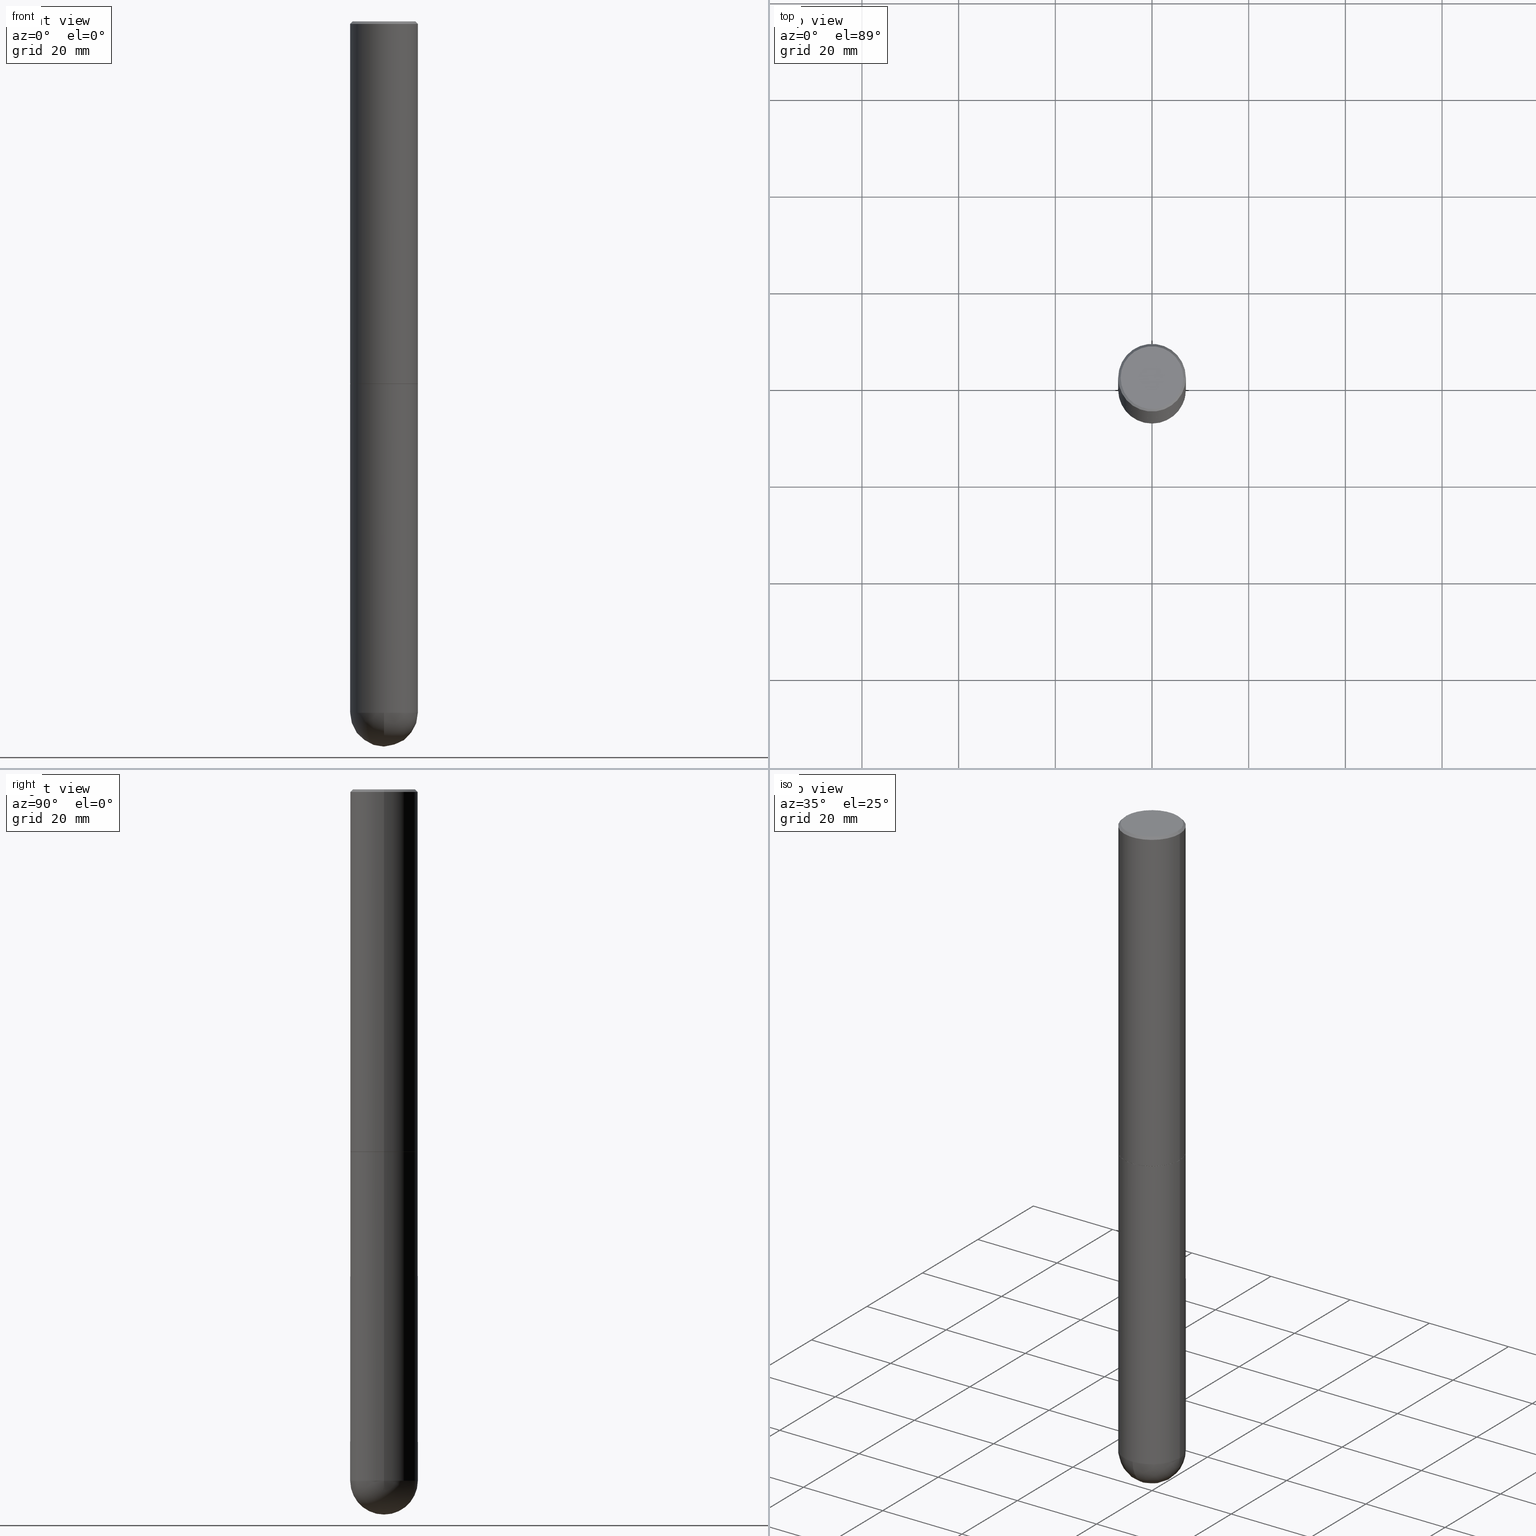
[diagram: canonical four-view strip — front | top / right | iso, engineering-drawing reading convention]
A machine part, canonical four-view strip (front | top / right | iso — engineering-drawing reading convention). The complete STEP part file that produces these views, byte-faithful:
ISO-10303-21;
HEADER;
FILE_DESCRIPTION (( 'STEP AP203' ),
    '1' );
FILE_NAME ('49617.STEP',
    '2024-04-10T12:30:39',
    ( '' ),
    ( '' ),
    'SwSTEP 2.0',
    'SolidWorks 2023',
    '' );
FILE_SCHEMA (( 'CONFIG_CONTROL_DESIGN' ));
ENDSEC;

DATA;
#1 = CARTESIAN_POINT ( 'NONE',  ( 1.343662505402781410E-28, -2.013087315769307636E-14, -5.629900000000000126 ) ) ;
#2 = FACE_OUTER_BOUND ( 'NONE', #232, .T. ) ;
#3 = ORIENTED_EDGE ( 'NONE', *, *, #283, .F. ) ;
#4 = EDGE_CURVE ( 'NONE', #39, #401, #132, .T. ) ;
#5 = VERTEX_POINT ( 'NONE', #399 ) ;
#6 = DIRECTION ( 'NONE',  ( -2.445468806185136597E-29, 3.491481338843145583E-15, 1.000000000000000000 ) ) ;
#7 = CARTESIAN_POINT ( 'NONE',  ( -3.862250233040313002E-45, 5.514269730407654285E-31, 1.579349621337152204E-16 ) ) ;
#8 = AXIS2_PLACEMENT_3D ( 'NONE', #258, #327, #157 ) ;
#9 = EDGE_LOOP ( 'NONE', ( #116, #371, #123, #220 ) ) ;
#10 = CC_DESIGN_APPROVAL ( #214, ( #393 ) ) ;
#11 = CIRCLE ( 'NONE', #361, 0.2756000000000000116 ) ;
#12 = ORIENTED_EDGE ( 'NONE', *, *, #4, .T. ) ;
#13 = VERTEX_POINT ( 'NONE', #314 ) ;
#14 =( NAMED_UNIT ( * ) SI_UNIT ( $, .STERADIAN. ) SOLID_ANGLE_UNIT ( ) );
#15 = CC_DESIGN_PERSON_AND_ORGANIZATION_ASSIGNMENT ( #239, #299, ( #82 ) ) ;
#16 = PERSON_AND_ORGANIZATION_ROLE ( 'classification_officer' ) ;
#17 = CIRCLE ( 'NONE', #254, 0.2756000000000000671 ) ;
#18 = APPROVAL_PERSON_ORGANIZATION ( #38, #253, #36 ) ;
#19 = ORIENTED_EDGE ( 'NONE', *, *, #243, .F. ) ;
#20 = LINE ( 'NONE', #196, #133 ) ;
#21 = ORIENTED_EDGE ( 'NONE', *, *, #345, .F. ) ;
#22 = CARTESIAN_POINT ( 'NONE',  ( 1.376774483194169922E-28, -1.965669078955302449E-14, -5.629900000000000126 ) ) ;
#23 = APPLICATION_PROTOCOL_DEFINITION ( 'international standard', 'config_control_design', 1994, #351 ) ;
#24 = DIRECTION ( 'NONE',  ( 2.445468806185136597E-29, -3.491481338843145583E-15, -1.000000000000000000 ) ) ;
#25 = DATE_TIME_ROLE ( 'classification_date' ) ;
#26 = PERSON_AND_ORGANIZATION_ROLE ( 'design_owner' ) ;
#27 = CARTESIAN_POINT ( 'NONE',  ( 0.2756000000000004557, -1.223030998183365327E-14, -2.951700000000000212 ) ) ;
#28 = CIRCLE ( 'NONE', #189, 0.2756000000000000116 ) ;
#29 = DIRECTION ( 'NONE',  ( -2.445468806185136597E-29, 3.491481338843145583E-15, 1.000000000000000000 ) ) ;
#30 = EDGE_CURVE ( 'NONE', #341, #75, #297, .T. ) ;
#31 = CARTESIAN_POINT ( 'NONE',  ( 1.924504513970407529E-15, 0.2755999999999896866, -2.952700000000000990 ) ) ;
#32 = EDGE_CURVE ( 'NONE', #303, #43, #255, .T. ) ;
#33 = CARTESIAN_POINT ( 'NONE',  ( 7.218290275216666916E-29, -1.030580546786331359E-14, -2.951700000000000212 ) ) ;
#34 = ADVANCED_FACE ( 'NONE', ( #94 ), #279, .F. ) ;
#35 = DIRECTION ( 'NONE',  ( -2.445468806185136597E-29, 3.491481338843145583E-15, 1.000000000000000000 ) ) ;
#36 = APPROVAL_ROLE ( '' ) ;
#37 = PLANE ( 'NONE',  #125 ) ;
#38 = PERSON_AND_ORGANIZATION ( #266, #277 ) ;
#39 = VERTEX_POINT ( 'NONE', #310 ) ;
#40 = CARTESIAN_POINT ( 'NONE',  ( 1.376774483194169922E-28, -1.965669078955302449E-14, -5.629900000000000126 ) ) ;
#41 = DIRECTION ( 'NONE',  ( 1.000000000000000000, -6.982962677686264344E-15, 0.000000000000000000 ) ) ;
#42 = ORIENTED_EDGE ( 'NONE', *, *, #359, .T. ) ;
#43 = VERTEX_POINT ( 'NONE', #27 ) ;
#44 = COORDINATED_UNIVERSAL_TIME_OFFSET ( 5, 0, .BEHIND. ) ;
#45 = DIRECTION ( 'NONE',  ( -2.445468806185136877E-29, 3.491481338843145188E-15, 1.000000000000000000 ) ) ;
#46 = CARTESIAN_POINT ( 'NONE',  ( -3.862250233040313002E-45, 5.514269730407654285E-31, 1.579349621337152204E-16 ) ) ;
#47 = ORIENTED_EDGE ( 'NONE', *, *, #96, .T. ) ;
#48 = DIRECTION ( 'NONE',  ( -0.7071067811865837660, 7.493145998870485111E-15, 0.7071067811865112684 ) ) ;
#49 = PERSON_AND_ORGANIZATION ( #266, #277 ) ;
#50 = DIRECTION ( 'NONE',  ( 1.000000000000000000, -6.982962677686265922E-15, 4.876943595080614977E-29 ) ) ;
#51 = CC_DESIGN_PERSON_AND_ORGANIZATION_ASSIGNMENT ( #335, #26, ( #275 ) ) ;
#52 = FACE_OUTER_BOUND ( 'NONE', #9, .T. ) ;
#53 = CALENDAR_DATE ( 2024, 10, 4 ) ;
#54 = DIRECTION ( 'NONE',  ( 1.000000000000000000, -6.982962677686265922E-15, 0.000000000000000000 ) ) ;
#55 = CIRCLE ( 'NONE', #367, 0.2756000000000000671 ) ;
#56 = COORDINATED_UNIVERSAL_TIME_OFFSET ( 5, 0, .BEHIND. ) ;
#57 = VERTEX_POINT ( 'NONE', #142 ) ;
#58 = CARTESIAN_POINT ( 'NONE',  ( 7.220735744022852519E-29, -1.030929694920215502E-14, -2.952700000000000102 ) ) ;
#59 = DIRECTION ( 'NONE',  ( 1.000000000000000000, -6.982962677686262766E-15, 0.000000000000000000 ) ) ;
#60 = DIRECTION ( 'NONE',  ( 1.000000000000000000, -6.982962677686267499E-15, 4.876176775795935793E-29 ) ) ;
#61 = CIRCLE ( 'NONE', #170, 0.2756000000000004557 ) ;
#62 = CC_DESIGN_APPROVAL ( #253, ( #355 ) ) ;
#63 = DIRECTION ( 'NONE',  ( -1.000000000000000000, 6.982962677686267499E-15, 0.000000000000000000 ) ) ;
#64 = EDGE_CURVE ( 'NONE', #131, #388, #11, .T. ) ;
#65 = LINE ( 'NONE', #113, #390 ) ;
#66 = EDGE_CURVE ( 'NONE', #13, #401, #28, .T. ) ;
#67 = ADVANCED_BREP_SHAPE_REPRESENTATION ( '49617', ( #204, #349, #296 ), #244 ) ;
#68 = EDGE_CURVE ( 'NONE', #106, #5, #161, .T. ) ;
#69 = ORIENTED_EDGE ( 'NONE', *, *, #381, .T. ) ;
#70 = AXIS2_PLACEMENT_3D ( 'NONE', #7, #215, #392 ) ;
#71 = CC_DESIGN_SECURITY_CLASSIFICATION ( #355, ( #82 ) ) ;
#72 = CYLINDRICAL_SURFACE ( 'NONE', #120, 0.2756000000000000671 ) ;
#73 = DIRECTION ( 'NONE',  ( -1.000000000000000000, 7.105427357601001070E-15, -4.926315508542082329E-29 ) ) ;
#74 = AXIS2_PLACEMENT_3D ( 'NONE', #330, #163, #300 ) ;
#75 = VERTEX_POINT ( 'NONE', #197 ) ;
#76 = SPHERICAL_SURFACE ( 'NONE', #74, 0.2756000000000000671 ) ;
#77 = DIRECTION ( 'NONE',  ( 0.7071067811865837660, -2.468850131082636503E-15, 0.7071067811865112684 ) ) ;
#78 = ORIENTED_EDGE ( 'NONE', *, *, #315, .T. ) ;
#79 = ADVANCED_FACE ( 'NONE', ( #237 ), #76, .T. ) ;
#80 = EDGE_LOOP ( 'NONE', ( #184, #288, #3, #100 ) ) ;
#81 = VECTOR ( 'NONE', #358, 39.37007874015748143 ) ;
#82 = PRODUCT_DEFINITION_FORMATION_WITH_SPECIFIED_SOURCE ( 'ANY', '', #275, .NOT_KNOWN. ) ;
#83 = DIRECTION ( 'NONE',  ( -2.445468806185136597E-29, 3.491481338843145583E-15, 1.000000000000000000 ) ) ;
#84 = APPROVAL_DATE_TIME ( #252, #410 ) ;
#85 = ORIENTED_EDGE ( 'NONE', *, *, #345, .T. ) ;
#86 = VECTOR ( 'NONE', #380, 39.37007874015748143 ) ;
#87 = DIRECTION ( 'NONE',  ( -2.445468806185136597E-29, 3.491481338843145583E-15, 1.000000000000000000 ) ) ;
#88 = ORIENTED_EDGE ( 'NONE', *, *, #64, .T. ) ;
#89 = CYLINDRICAL_SURFACE ( 'NONE', #146, 0.2756000000000002337 ) ;
#90 = EDGE_CURVE ( 'NONE', #57, #294, #201, .T. ) ;
#91 = DIRECTION ( 'NONE',  ( 1.000000000000000000, -6.982962677686262766E-15, 0.000000000000000000 ) ) ;
#92 = AXIS2_PLACEMENT_3D ( 'NONE', #353, #124, #316 ) ;
#93 = CARTESIAN_POINT ( 'NONE',  ( 7.220735744022852519E-29, -1.030929694920215502E-14, -2.952700000000000102 ) ) ;
#94 = FACE_OUTER_BOUND ( 'NONE', #98, .T. ) ;
#95 = VECTOR ( 'NONE', #45, 39.37007874015748143 ) ;
#96 = EDGE_CURVE ( 'NONE', #223, #131, #65, .T. ) ;
#97 = LINE ( 'NONE', #222, #81 ) ;
#98 = EDGE_LOOP ( 'NONE', ( #108, #262 ) ) ;
#99 = ADVANCED_FACE ( 'NONE', ( #404 ), #309, .T. ) ;
#100 = ORIENTED_EDGE ( 'NONE', *, *, #281, .F. ) ;
#101 = DIRECTION ( 'NONE',  ( 0.000000000000000000, 0.000000000000000000, 1.000000000000000000 ) ) ;
#102 = ADVANCED_FACE ( 'NONE', ( #119 ), #139, .T. ) ;
#103 = DIRECTION ( 'NONE',  ( -2.445468806185136597E-29, 3.491481338843145583E-15, 1.000000000000000000 ) ) ;
#104 = ADVANCED_FACE ( 'NONE', ( #278 ), #271, .T. ) ;
#105 = ORIENTED_EDGE ( 'NONE', *, *, #238, .T. ) ;
#106 = VERTEX_POINT ( 'NONE', #178 ) ;
#107 = PRODUCT_RELATED_PRODUCT_CATEGORY ( 'detail', '', ( #275 ) ) ;
#108 = ORIENTED_EDGE ( 'NONE', *, *, #68, .F. ) ;
#109 = CIRCLE ( 'NONE', #325, 0.2756000000000000671 ) ;
#110 = DIRECTION ( 'NONE',  ( -2.445468806185136597E-29, 3.491481338843145583E-15, 1.000000000000000000 ) ) ;
#111 = VERTEX_POINT ( 'NONE', #312 ) ;
#112 = PERSON_AND_ORGANIZATION_ROLE ( 'creator' ) ;
#113 = CARTESIAN_POINT ( 'NONE',  ( 0.2756000000000000116, -1.960582874962697406E-15, -0.02000000000000006287 ) ) ;
#114 = AXIS2_PLACEMENT_3D ( 'NONE', #169, #83, #306 ) ;
#115 = LOCAL_TIME ( 8, 30, 39.00000000000000000, #387 ) ;
#116 = ORIENTED_EDGE ( 'NONE', *, *, #96, .F. ) ;
#117 = CARTESIAN_POINT ( 'NONE',  ( 4.890937612370288923E-31, -6.982962677686312563E-17, -0.02000000000000006287 ) ) ;
#118 = CARTESIAN_POINT ( 'NONE',  ( 0.2756000000000002337, -1.924504513970336926E-15, 1.343874319409361109E-29 ) ) ;
#119 = FACE_OUTER_BOUND ( 'NONE', #80, .T. ) ;
#120 = AXIS2_PLACEMENT_3D ( 'NONE', #185, #6, #357 ) ;
#121 = DIMENSIONAL_EXPONENTS ( 1.000000000000000000, 0.000000000000000000, 0.000000000000000000, 0.000000000000000000, 0.000000000000000000, 0.000000000000000000, 0.000000000000000000 ) ;
#122 = APPROVAL_DATE_TIME ( #352, #253 ) ;
#123 = ORIENTED_EDGE ( 'NONE', *, *, #234, .T. ) ;
#124 = DIRECTION ( 'NONE',  ( -2.445468806185136597E-29, 3.491481338843145583E-15, 1.000000000000000000 ) ) ;
#125 = AXIS2_PLACEMENT_3D ( 'NONE', #389, #284, #356 ) ;
#126 = DIRECTION ( 'NONE',  ( -7.105427357601001859E-15, -1.000000000000000000, 0.000000000000000000 ) ) ;
#127 = ORIENTED_EDGE ( 'NONE', *, *, #315, .F. ) ;
#128 = EDGE_LOOP ( 'NONE', ( #159, #328, #228, #386 ) ) ;
#129 = CC_DESIGN_DATE_AND_TIME_ASSIGNMENT ( #168, #25, ( #355 ) ) ;
#130 = DIRECTION ( 'NONE',  ( -2.445468806185136597E-29, 3.491481338843145583E-15, 1.000000000000000000 ) ) ;
#131 = VERTEX_POINT ( 'NONE', #409 ) ;
#132 = LINE ( 'NONE', #264, #95 ) ;
#133 = VECTOR ( 'NONE', #48, 39.37007874015748143 ) ;
#134 = CARTESIAN_POINT ( 'NONE',  ( 0.2746000000000000107, -1.222681850049480396E-14, -2.952700000000000546 ) ) ;
#135 = CIRCLE ( 'NONE', #70, 0.2555999999999998828 ) ;
#136 = EDGE_LOOP ( 'NONE', ( #149, #293, #85, #155 ) ) ;
#137 = PERSON_AND_ORGANIZATION ( #266, #277 ) ;
#138 = APPROVAL_ROLE ( '' ) ;
#139 = CONICAL_SURFACE ( 'NONE', #347, 0.2746000000000000107, 0.7853981633974995713 ) ;
#140 = ADVANCED_FACE ( 'NONE', ( #350 ), #221, .T. ) ;
#141 = FACE_OUTER_BOUND ( 'NONE', #267, .T. ) ;
#142 = CARTESIAN_POINT ( 'NONE',  ( -1.958255779754700116E-15, -0.2756000000000199956, -5.629899999999999238 ) ) ;
#143 = CARTESIAN_POINT ( 'NONE',  ( 0.000000000000000000, 0.000000000000000000, 0.000000000000000000 ) ) ;
#144 = DIRECTION ( 'NONE',  ( 1.000000000000000000, -6.982962677686262766E-15, 0.000000000000000000 ) ) ;
#145 = FACE_OUTER_BOUND ( 'NONE', #259, .T. ) ;
#146 = AXIS2_PLACEMENT_3D ( 'NONE', #143, #406, #203 ) ;
#147 = DIRECTION ( 'NONE',  ( -0.7071067811865464625, 2.468850131082245622E-15, -0.7071067811865485719 ) ) ;
#148 =( LENGTH_UNIT ( ) NAMED_UNIT ( * ) SI_UNIT ( $, .METRE. ) );
#149 = ORIENTED_EDGE ( 'NONE', *, *, #381, .F. ) ;
#150 = APPLICATION_CONTEXT ( 'configuration controlled 3d designs of mechanical parts and assemblies' ) ;
#151 = ORIENTED_EDGE ( 'NONE', *, *, #281, .T. ) ;
#152 = CARTESIAN_POINT ( 'NONE',  ( 0.2555999999999998828, -1.857063081596549636E-15, 1.579349621337279654E-16 ) ) ;
#153 = AXIS2_PLACEMENT_3D ( 'NONE', #33, #384, #318 ) ;
#154 = CARTESIAN_POINT ( 'NONE',  ( 4.890937612370288923E-31, -6.982962677686312563E-17, -0.02000000000000006287 ) ) ;
#155 = ORIENTED_EDGE ( 'NONE', *, *, #265, .F. ) ;
#156 = CC_DESIGN_PERSON_AND_ORGANIZATION_ASSIGNMENT ( #49, #112, ( #393 ) ) ;
#157 = DIRECTION ( 'NONE',  ( 6.982962677686265922E-15, 1.000000000000000000, -3.964946289788479319E-15 ) ) ;
#158 = EDGE_LOOP ( 'NONE', ( #105, #171 ) ) ;
#159 = ORIENTED_EDGE ( 'NONE', *, *, #216, .F. ) ;
#160 = PERSON_AND_ORGANIZATION ( #266, #277 ) ;
#161 = CIRCLE ( 'NONE', #114, 0.2746000000000000107 ) ;
#162 = EDGE_CURVE ( 'NONE', #75, #39, #109, .T. ) ;
#163 = DIRECTION ( 'NONE',  ( -1.000000000000000000, 6.982962677686265922E-15, -4.883557194083112901E-29 ) ) ;
#164 = CARTESIAN_POINT ( 'NONE',  ( 0.2756000000000000671, -1.690749838334792865E-14, -5.629900000000000126 ) ) ;
#165 = COORDINATED_UNIVERSAL_TIME_OFFSET ( 5, 0, .BEHIND. ) ;
#166 = CARTESIAN_POINT ( 'NONE',  ( 4.890937612370288923E-31, -6.982962677686312563E-17, -0.02000000000000006287 ) ) ;
#167 = CALENDAR_DATE ( 2024, 10, 4 ) ;
#168 = DATE_AND_TIME ( #53, #251 ) ;
#169 = CARTESIAN_POINT ( 'NONE',  ( 7.220735744022853640E-29, -1.030929694920215659E-14, -2.952700000000000546 ) ) ;
#170 = AXIS2_PLACEMENT_3D ( 'NONE', #301, #192, #365 ) ;
#171 = ORIENTED_EDGE ( 'NONE', *, *, #292, .T. ) ;
#172 = CARTESIAN_POINT ( 'NONE',  ( 1.376774483194169922E-28, -1.965669078955302449E-14, -5.629900000000000126 ) ) ;
#173 = CARTESIAN_POINT ( 'NONE',  ( 7.220735744022853640E-29, -1.030929694920215659E-14, -2.952700000000000546 ) ) ;
#174 = DIRECTION ( 'NONE',  ( 1.000000000000000000, -6.982962677686265922E-15, 4.876176775795935793E-29 ) ) ;
#175 = CARTESIAN_POINT ( 'NONE',  ( 7.220735744022853640E-29, -1.030929694920215659E-14, -2.952700000000000546 ) ) ;
#176 = VECTOR ( 'NONE', #147, 39.37007874015748143 ) ;
#177 = APPROVAL_PERSON_ORGANIZATION ( #229, #214, #138 ) ;
#178 = CARTESIAN_POINT ( 'NONE',  ( 0.2746000000000000107, -1.222681850049480396E-14, -2.952700000000000546 ) ) ;
#179 = LINE ( 'NONE', #313, #176 ) ;
#180 = FACE_OUTER_BOUND ( 'NONE', #158, .T. ) ;
#181 = DESIGN_CONTEXT ( 'detailed design', #351, 'design' ) ;
#182 = VECTOR ( 'NONE', #343, 39.37007874015748143 ) ;
#183 = APPROVAL_PERSON_ORGANIZATION ( #160, #410, #191 ) ;
#184 = ORIENTED_EDGE ( 'NONE', *, *, #68, .T. ) ;
#185 = CARTESIAN_POINT ( 'NONE',  ( 0.000000000000000000, 0.000000000000000000, 0.000000000000000000 ) ) ;
#186 = ADVANCED_FACE ( 'NONE', ( #180 ), #37, .F. ) ;
#187 = MECHANICAL_CONTEXT ( 'NONE', #150, 'mechanical' ) ;
#188 = ORIENTED_EDGE ( 'NONE', *, *, #30, .F. ) ;
#189 = AXIS2_PLACEMENT_3D ( 'NONE', #58, #103, #54 ) ;
#190 = ORIENTED_EDGE ( 'NONE', *, *, #292, .F. ) ;
#191 = APPROVAL_ROLE ( '' ) ;
#192 = DIRECTION ( 'NONE',  ( -2.445468806185136597E-29, 3.491481338843145583E-15, 1.000000000000000000 ) ) ;
#193 = ORIENTED_EDGE ( 'NONE', *, *, #90, .T. ) ;
#194 =( NAMED_UNIT ( * ) PLANE_ANGLE_UNIT ( ) SI_UNIT ( $, .RADIAN. ) );
#195 = DIRECTION ( 'NONE',  ( -2.445468806185136597E-29, 3.491481338843145583E-15, 1.000000000000000000 ) ) ;
#196 = CARTESIAN_POINT ( 'NONE',  ( -0.2746000000000000107, -8.358146596804921801E-15, -2.952700000000000546 ) ) ;
#197 = CARTESIAN_POINT ( 'NONE',  ( 1.924504513970471427E-15, 0.2755999999999801942, -5.629900000000001015 ) ) ;
#198 = CARTESIAN_POINT ( 'NONE',  ( -0.2756000000000000116, 1.854674887193472050E-15, -0.02000000000000006287 ) ) ;
#199 = SECURITY_CLASSIFICATION_LEVEL ( 'unclassified' ) ;
#200 = ORIENTED_EDGE ( 'NONE', *, *, #64, .F. ) ;
#201 = CIRCLE ( 'NONE', #320, 0.2756000000000000671 ) ;
#202 = ADVANCED_FACE ( 'NONE', ( #2 ), #72, .T. ) ;
#203 = DIRECTION ( 'NONE',  ( 1.000000000000000000, -6.982962677686267499E-15, 4.876176775795935793E-29 ) ) ;
#204 = MANIFOLD_SOLID_BREP ( 'Body-Move/Copy2[1]', #363 ) ;
#205 =( CONVERSION_BASED_UNIT ( 'INCH', #208 ) LENGTH_UNIT ( ) NAMED_UNIT ( #121 ) );
#206 = DIRECTION ( 'NONE',  ( 1.000000000000000000, -6.982962677686264344E-15, 0.000000000000000000 ) ) ;
#207 = DIRECTION ( 'NONE',  ( 0.7071067811865464625, -7.319954787623252890E-15, -0.7071067811865485719 ) ) ;
#208 = LENGTH_MEASURE_WITH_UNIT ( LENGTH_MEASURE( 0.02539999999999999897 ), #148 );
#209 = DIRECTION ( 'NONE',  ( -2.438088387897960049E-29, 3.491481338843145188E-15, 1.000000000000000000 ) ) ;
#210 = FACE_OUTER_BOUND ( 'NONE', #136, .T. ) ;
#211 = AXIS2_PLACEMENT_3D ( 'NONE', #246, #87, #60 ) ;
#212 = CC_DESIGN_APPROVAL ( #410, ( #82 ) ) ;
#213 = DIRECTION ( 'NONE',  ( 1.000000000000000000, -6.982962677686265922E-15, 4.883557194083112340E-29 ) ) ;
#214 = APPROVAL ( #302, 'UNSPECIFIED' ) ;
#215 = DIRECTION ( 'NONE',  ( -2.445468806185136597E-29, 3.491481338843145583E-15, 1.000000000000000000 ) ) ;
#216 = EDGE_CURVE ( 'NONE', #341, #57, #55, .T. ) ;
#217 = EDGE_CURVE ( 'NONE', #294, #75, #17, .T. ) ;
#218 = CARTESIAN_POINT ( 'NONE',  ( 7.220735744022853640E-29, -1.030929694920215659E-14, -2.952700000000000546 ) ) ;
#219 = AXIS2_PLACEMENT_3D ( 'NONE', #166, #24, #372 ) ;
#220 = ORIENTED_EDGE ( 'NONE', *, *, #265, .T. ) ;
#221 = CYLINDRICAL_SURFACE ( 'NONE', #92, 0.2756000000000000671 ) ;
#222 = CARTESIAN_POINT ( 'NONE',  ( 0.2756000000000000671, -1.924504513970335743E-15, 1.343874319409360268E-29 ) ) ;
#223 = VERTEX_POINT ( 'NONE', #152 ) ;
#224 = AXIS2_PLACEMENT_3D ( 'NONE', #46, #195, #50 ) ;
#225 = DIRECTION ( 'NONE',  ( 1.000000000000000000, 0.000000000000000000, 0.000000000000000000 ) ) ;
#226 = ORIENTED_EDGE ( 'NONE', *, *, #217, .T. ) ;
#227 = UNCERTAINTY_MEASURE_WITH_UNIT (LENGTH_MEASURE( 1.000000000000000082E-05 ), #205, 'distance_accuracy_value', 'NONE');
#228 = ORIENTED_EDGE ( 'NONE', *, *, #217, .F. ) ;
#229 = PERSON_AND_ORGANIZATION ( #266, #277 ) ;
#230 = CARTESIAN_POINT ( 'NONE',  ( -0.2756000000000000116, -1.302473808962275237E-14, -2.952700000000000102 ) ) ;
#231 = DATE_AND_TIME ( #167, #368 ) ;
#232 = EDGE_LOOP ( 'NONE', ( #298, #78, #193, #287, #256 ) ) ;
#233 = VECTOR ( 'NONE', #77, 39.37007874015748143 ) ;
#234 = EDGE_CURVE ( 'NONE', #111, #388, #179, .T. ) ;
#235 = LOCAL_TIME ( 8, 30, 39.00000000000000000, #56 ) ;
#236 = CC_DESIGN_DATE_AND_TIME_ASSIGNMENT ( #231, #304, ( #393 ) ) ;
#237 = FACE_OUTER_BOUND ( 'NONE', #128, .T. ) ;
#238 = EDGE_CURVE ( 'NONE', #111, #223, #135, .T. ) ;
#239 = PERSON_AND_ORGANIZATION ( #266, #277 ) ;
#240 = PRODUCT_DEFINITION_SHAPE ( 'NONE', 'NONE',  #393 ) ;
#241 = PLANE ( 'NONE',  #397 ) ;
#242 = APPROVAL_STATUS ( 'not_yet_approved' ) ;
#243 = EDGE_CURVE ( 'NONE', #294, #13, #97, .T. ) ;
#244 =( GEOMETRIC_REPRESENTATION_CONTEXT ( 3 ) GLOBAL_UNCERTAINTY_ASSIGNED_CONTEXT ( ( #227 ) ) GLOBAL_UNIT_ASSIGNED_CONTEXT ( ( #205, #194, #14 ) ) REPRESENTATION_CONTEXT ( 'NONE', 'WORKASPACE' ) );
#245 = CLOSED_SHELL ( 'NONE', ( #102, #99, #104, #398, #311, #326, #34, #186 ) ) ;
#246 = CARTESIAN_POINT ( 'NONE',  ( 0.000000000000000000, 0.000000000000000000, 0.000000000000000000 ) ) ;
#247 = DIRECTION ( 'NONE',  ( -2.445468806185136597E-29, 3.491481338843145583E-15, 1.000000000000000000 ) ) ;
#248 = ADVANCED_FACE ( 'NONE', ( #324 ), #290, .T. ) ;
#249 = DIRECTION ( 'NONE',  ( 2.445468806185136597E-29, -3.491481338843145583E-15, -1.000000000000000000 ) ) ;
#250 = LINE ( 'NONE', #118, #86 ) ;
#251 = LOCAL_TIME ( 8, 30, 39.00000000000000000, #165 ) ;
#252 = DATE_AND_TIME ( #322, #235 ) ;
#253 = APPROVAL ( #383, 'UNSPECIFIED' ) ;
#254 = AXIS2_PLACEMENT_3D ( 'NONE', #257, #391, #41 ) ;
#255 = CIRCLE ( 'NONE', #153, 0.2756000000000004557 ) ;
#256 = ORIENTED_EDGE ( 'NONE', *, *, #403, .F. ) ;
#257 = CARTESIAN_POINT ( 'NONE',  ( 1.376774483194169922E-28, -1.965669078955302449E-14, -5.629900000000000126 ) ) ;
#258 = CARTESIAN_POINT ( 'NONE',  ( 1.343662505402781410E-28, -2.013087315769307636E-14, -5.629900000000000126 ) ) ;
#259 = EDGE_LOOP ( 'NONE', ( #329, #42, #151, #394 ) ) ;
#260 = CARTESIAN_POINT ( 'NONE',  ( 0.000000000000000000, 0.000000000000000000, 0.000000000000000000 ) ) ;
#261 = LINE ( 'NONE', #134, #233 ) ;
#262 = ORIENTED_EDGE ( 'NONE', *, *, #359, .F. ) ;
#263 = CONICAL_SURFACE ( 'NONE', #405, 0.2746000000000000107, 0.7853981633974995713 ) ;
#264 = CARTESIAN_POINT ( 'NONE',  ( -0.2756000000000000671, 1.958255779754836589E-15, -1.355658510874252287E-29 ) ) ;
#265 = EDGE_CURVE ( 'NONE', #388, #131, #305, .T. ) ;
#266 = PERSON ( 'UNSPECIFIED', 'UNSPECIFIED', 'UNSPECIFIED', ('UNSPECIFIED'), ('UNSPECIFIED'), ('UNSPECIFIED') ) ;
#267 = EDGE_LOOP ( 'NONE', ( #396, #339 ) ) ;
#268 = LINE ( 'NONE', #402, #182 ) ;
#269 = PERSON_AND_ORGANIZATION_ROLE ( 'design_supplier' ) ;
#270 = COORDINATED_UNIVERSAL_TIME_OFFSET ( 5, 0, .BEHIND. ) ;
#271 = CONICAL_SURFACE ( 'NONE', #289, 0.2756000000000000116, 0.7853981633974468357 ) ;
#272 = DATE_AND_TIME ( #370, #412 ) ;
#273 = CARTESIAN_POINT ( 'NONE',  ( -0.2756000000000004002, -3.229561767565246331E-15, -2.951700000000000212 ) ) ;
#274 = SHAPE_DEFINITION_REPRESENTATION ( #240, #67 ) ;
#275 = PRODUCT ( '49617', '49617', '', ( #187 ) ) ;
#276 = CIRCLE ( 'NONE', #340, 0.2756000000000000671 ) ;
#277 = ORGANIZATION ( 'UNSPECIFIED', 'UNSPECIFIED', '' ) ;
#278 = FACE_OUTER_BOUND ( 'NONE', #364, .T. ) ;
#279 = PLANE ( 'NONE',  #369 ) ;
#280 = DIRECTION ( 'NONE',  ( -2.445468806185136597E-29, 3.491481338843145583E-15, 1.000000000000000000 ) ) ;
#281 = EDGE_CURVE ( 'NONE', #106, #43, #261, .T. ) ;
#282 = CC_DESIGN_PERSON_AND_ORGANIZATION_ASSIGNMENT ( #336, #16, ( #355 ) ) ;
#283 = EDGE_CURVE ( 'NONE', #43, #303, #61, .T. ) ;
#284 = DIRECTION ( 'NONE',  ( 2.438088387897960049E-29, -3.491481338843145188E-15, -1.000000000000000000 ) ) ;
#285 = CALENDAR_DATE ( 2024, 10, 4 ) ;
#286 = ORIENTED_EDGE ( 'NONE', *, *, #162, .T. ) ;
#287 = ORIENTED_EDGE ( 'NONE', *, *, #243, .T. ) ;
#288 = ORIENTED_EDGE ( 'NONE', *, *, #376, .T. ) ;
#289 = AXIS2_PLACEMENT_3D ( 'NONE', #117, #249, #63 ) ;
#290 = SPHERICAL_SURFACE ( 'NONE', #8, 0.2756000000000000671 ) ;
#291 = ORIENTED_EDGE ( 'NONE', *, *, #234, .F. ) ;
#292 = EDGE_CURVE ( 'NONE', #223, #111, #411, .T. ) ;
#293 = ORIENTED_EDGE ( 'NONE', *, *, #32, .T. ) ;
#294 = VERTEX_POINT ( 'NONE', #164 ) ;
#295 = AXIS2_PLACEMENT_3D ( 'NONE', #93, #408, #385 ) ;
#296 = AXIS2_PLACEMENT_3D ( 'NONE', #260, #101, #225 ) ;
#297 = CIRCLE ( 'NONE', #334, 0.2756000000000000671 ) ;
#298 = ORIENTED_EDGE ( 'NONE', *, *, #4, .F. ) ;
#299 = PERSON_AND_ORGANIZATION_ROLE ( 'creator' ) ;
#300 = DIRECTION ( 'NONE',  ( 6.982962677686265922E-15, 1.000000000000000000, -3.964946289788479319E-15 ) ) ;
#301 = CARTESIAN_POINT ( 'NONE',  ( 7.218290275216666916E-29, -1.030580546786331359E-14, -2.951700000000000212 ) ) ;
#302 = APPROVAL_STATUS ( 'not_yet_approved' ) ;
#303 = VERTEX_POINT ( 'NONE', #273 ) ;
#304 = DATE_TIME_ROLE ( 'creation_date' ) ;
#305 = CIRCLE ( 'NONE', #382, 0.2756000000000000116 ) ;
#306 = DIRECTION ( 'NONE',  ( 1.000000000000000000, -6.982962677686262766E-15, 0.000000000000000000 ) ) ;
#307 = EDGE_LOOP ( 'NONE', ( #188, #373, #127, #366 ) ) ;
#308 = DIRECTION ( 'NONE',  ( -2.445468806185136597E-29, 3.491481338843145583E-15, 1.000000000000000000 ) ) ;
#309 = CYLINDRICAL_SURFACE ( 'NONE', #211, 0.2756000000000002337 ) ;
#310 = CARTESIAN_POINT ( 'NONE',  ( -0.2756000000000000671, -1.302473808962275553E-14, -5.629900000000000126 ) ) ;
#311 = ADVANCED_FACE ( 'NONE', ( #210 ), #89, .T. ) ;
#312 = CARTESIAN_POINT ( 'NONE',  ( -0.2555999999999998828, 1.819760073805040796E-15, 1.579349621337025986E-16 ) ) ;
#313 = CARTESIAN_POINT ( 'NONE',  ( -0.2756000000000000116, 1.854674887193472050E-15, -0.02000000000000006287 ) ) ;
#314 = CARTESIAN_POINT ( 'NONE',  ( 0.2756000000000000116, -1.223380146317248997E-14, -2.952700000000000102 ) ) ;
#315 = EDGE_CURVE ( 'NONE', #39, #57, #276, .T. ) ;
#316 = DIRECTION ( 'NONE',  ( 1.000000000000000000, -6.982962677686267499E-15, 4.876176775795935793E-29 ) ) ;
#317 = ADVANCED_FACE ( 'NONE', ( #141 ), #241, .F. ) ;
#318 = DIRECTION ( 'NONE',  ( 1.000000000000000000, -6.982962677686269077E-15, 0.000000000000000000 ) ) ;
#319 = CIRCLE ( 'NONE', #375, 0.2746000000000000107 ) ;
#320 = AXIS2_PLACEMENT_3D ( 'NONE', #22, #110, #378 ) ;
#321 = DIRECTION ( 'NONE',  ( 1.000000000000000000, -6.982962677686264344E-15, 0.000000000000000000 ) ) ;
#322 = CALENDAR_DATE ( 2024, 10, 4 ) ;
#323 = CARTESIAN_POINT ( 'NONE',  ( 1.343662505402781410E-28, -2.013087315769307636E-14, -5.629900000000000126 ) ) ;
#324 = FACE_OUTER_BOUND ( 'NONE', #307, .T. ) ;
#325 = AXIS2_PLACEMENT_3D ( 'NONE', #40, #35, #321 ) ;
#326 = ADVANCED_FACE ( 'NONE', ( #145 ), #263, .T. ) ;
#327 = DIRECTION ( 'NONE',  ( -1.000000000000000000, 6.982962677686265922E-15, -4.883557194083112901E-29 ) ) ;
#328 = ORIENTED_EDGE ( 'NONE', *, *, #30, .T. ) ;
#329 = ORIENTED_EDGE ( 'NONE', *, *, #376, .F. ) ;
#330 = CARTESIAN_POINT ( 'NONE',  ( 1.343662505402781410E-28, -2.013087315769307636E-14, -5.629900000000000126 ) ) ;
#331 = DIRECTION ( 'NONE',  ( 1.000000000000000000, -6.982962677686267499E-15, 0.000000000000000000 ) ) ;
#332 = EDGE_LOOP ( 'NONE', ( #286, #12, #400, #19, #226 ) ) ;
#333 = CIRCLE ( 'NONE', #295, 0.2756000000000000116 ) ;
#334 = AXIS2_PLACEMENT_3D ( 'NONE', #1, #213, #379 ) ;
#335 = PERSON_AND_ORGANIZATION ( #266, #277 ) ;
#336 = PERSON_AND_ORGANIZATION ( #266, #277 ) ;
#337 = DIRECTION ( 'NONE',  ( 1.000000000000000000, -6.982962677686267499E-15, 0.000000000000000000 ) ) ;
#338 = APPROVAL_DATE_TIME ( #272, #214 ) ;
#339 = ORIENTED_EDGE ( 'NONE', *, *, #403, .T. ) ;
#340 = AXIS2_PLACEMENT_3D ( 'NONE', #172, #247, #206 ) ;
#341 = VERTEX_POINT ( 'NONE', #407 ) ;
#342 = DIRECTION ( 'NONE',  ( -1.000000000000000000, 6.982962677686265922E-15, -4.876176775795935793E-29 ) ) ;
#343 = DIRECTION ( 'NONE',  ( -2.445468806185136877E-29, 3.491481338843145188E-15, 1.000000000000000000 ) ) ;
#344 = EDGE_LOOP ( 'NONE', ( #395, #69, #200, #21 ) ) ;
#345 = EDGE_CURVE ( 'NONE', #43, #131, #250, .T. ) ;
#346 = DIRECTION ( 'NONE',  ( 2.438088387897960049E-29, -3.491481338843145188E-15, -1.000000000000000000 ) ) ;
#347 = AXIS2_PLACEMENT_3D ( 'NONE', #175, #29, #144 ) ;
#348 = DIRECTION ( 'NONE',  ( -2.445468806185136597E-29, 3.491481338843145583E-15, 1.000000000000000000 ) ) ;
#349 = MANIFOLD_SOLID_BREP ( 'Body-Move/Copy2[2]', #245 ) ;
#350 = FACE_OUTER_BOUND ( 'NONE', #332, .T. ) ;
#351 = APPLICATION_CONTEXT ( 'configuration controlled 3d designs of mechanical parts and assemblies' ) ;
#352 = DATE_AND_TIME ( #285, #115 ) ;
#353 = CARTESIAN_POINT ( 'NONE',  ( 0.000000000000000000, 0.000000000000000000, 0.000000000000000000 ) ) ;
#354 = CONICAL_SURFACE ( 'NONE', #219, 0.2756000000000000116, 0.7853981633974468357 ) ;
#355 = SECURITY_CLASSIFICATION ( '', '', #199 ) ;
#356 = DIRECTION ( 'NONE',  ( -1.000000000000000000, 6.982962677686265922E-15, -4.876176775795935793E-29 ) ) ;
#357 = DIRECTION ( 'NONE',  ( 1.000000000000000000, -6.982962677686267499E-15, 4.876176775795935793E-29 ) ) ;
#358 = DIRECTION ( 'NONE',  ( -2.445468806185136877E-29, 3.491481338843145188E-15, 1.000000000000000000 ) ) ;
#359 = EDGE_CURVE ( 'NONE', #5, #106, #319, .T. ) ;
#360 = CC_DESIGN_PERSON_AND_ORGANIZATION_ASSIGNMENT ( #137, #269, ( #82 ) ) ;
#361 = AXIS2_PLACEMENT_3D ( 'NONE', #377, #348, #337 ) ;
#362 = APPLICATION_PROTOCOL_DEFINITION ( 'international standard', 'config_control_design', 1994, #150 ) ;
#363 = CLOSED_SHELL ( 'NONE', ( #140, #248, #79, #317, #202 ) ) ;
#364 = EDGE_LOOP ( 'NONE', ( #190, #47, #88, #291 ) ) ;
#365 = DIRECTION ( 'NONE',  ( 1.000000000000000000, -6.982962677686269077E-15, 0.000000000000000000 ) ) ;
#366 = ORIENTED_EDGE ( 'NONE', *, *, #162, .F. ) ;
#367 = AXIS2_PLACEMENT_3D ( 'NONE', #323, #73, #126 ) ;
#368 = LOCAL_TIME ( 8, 30, 39.00000000000000000, #270 ) ;
#369 = AXIS2_PLACEMENT_3D ( 'NONE', #218, #209, #174 ) ;
#370 = CALENDAR_DATE ( 2024, 10, 4 ) ;
#371 = ORIENTED_EDGE ( 'NONE', *, *, #238, .F. ) ;
#372 = DIRECTION ( 'NONE',  ( -1.000000000000000000, 6.982962677686267499E-15, 0.000000000000000000 ) ) ;
#373 = ORIENTED_EDGE ( 'NONE', *, *, #216, .T. ) ;
#374 = CARTESIAN_POINT ( 'NONE',  ( 7.220735744022853640E-29, -1.030929694920215659E-14, -2.952700000000000546 ) ) ;
#375 = AXIS2_PLACEMENT_3D ( 'NONE', #173, #308, #91 ) ;
#376 = EDGE_CURVE ( 'NONE', #5, #303, #20, .T. ) ;
#377 = CARTESIAN_POINT ( 'NONE',  ( 4.890937612370288923E-31, -6.982962677686312563E-17, -0.02000000000000006287 ) ) ;
#378 = DIRECTION ( 'NONE',  ( 1.000000000000000000, -6.982962677686264344E-15, 0.000000000000000000 ) ) ;
#379 = DIRECTION ( 'NONE',  ( 6.982962677686267499E-15, 1.000000000000000000, 0.000000000000000000 ) ) ;
#380 = DIRECTION ( 'NONE',  ( -2.445468806185136877E-29, 3.491481338843145188E-15, 1.000000000000000000 ) ) ;
#381 = EDGE_CURVE ( 'NONE', #303, #388, #268, .T. ) ;
#382 = AXIS2_PLACEMENT_3D ( 'NONE', #154, #130, #331 ) ;
#383 = APPROVAL_STATUS ( 'not_yet_approved' ) ;
#384 = DIRECTION ( 'NONE',  ( -2.445468806185136597E-29, 3.491481338843145583E-15, 1.000000000000000000 ) ) ;
#385 = DIRECTION ( 'NONE',  ( 1.000000000000000000, -6.982962677686265922E-15, 0.000000000000000000 ) ) ;
#386 = ORIENTED_EDGE ( 'NONE', *, *, #90, .F. ) ;
#387 = COORDINATED_UNIVERSAL_TIME_OFFSET ( 5, 0, .BEHIND. ) ;
#388 = VERTEX_POINT ( 'NONE', #198 ) ;
#389 = CARTESIAN_POINT ( 'NONE',  ( 1.784845260416608752E-15, 0.2555999999999998828, -8.134551491414498350E-16 ) ) ;
#390 = VECTOR ( 'NONE', #207, 39.37007874015748143 ) ;
#391 = DIRECTION ( 'NONE',  ( -2.445468806185136597E-29, 3.491481338843145583E-15, 1.000000000000000000 ) ) ;
#392 = DIRECTION ( 'NONE',  ( 1.000000000000000000, -6.982962677686265922E-15, 4.876943595080614977E-29 ) ) ;
#393 = PRODUCT_DEFINITION ( 'UNKNOWN', '', #82, #181 ) ;
#394 = ORIENTED_EDGE ( 'NONE', *, *, #32, .F. ) ;
#395 = ORIENTED_EDGE ( 'NONE', *, *, #283, .T. ) ;
#396 = ORIENTED_EDGE ( 'NONE', *, *, #66, .T. ) ;
#397 = AXIS2_PLACEMENT_3D ( 'NONE', #31, #346, #342 ) ;
#398 = ADVANCED_FACE ( 'NONE', ( #52 ), #354, .T. ) ;
#399 = CARTESIAN_POINT ( 'NONE',  ( -0.2746000000000000107, -8.352848142456696244E-15, -2.952700000000000546 ) ) ;
#400 = ORIENTED_EDGE ( 'NONE', *, *, #66, .F. ) ;
#401 = VERTEX_POINT ( 'NONE', #230 ) ;
#402 = CARTESIAN_POINT ( 'NONE',  ( -0.2756000000000002337, 1.958255779754837773E-15, -1.355658510874253128E-29 ) ) ;
#403 = EDGE_CURVE ( 'NONE', #401, #13, #333, .T. ) ;
#404 = FACE_OUTER_BOUND ( 'NONE', #344, .T. ) ;
#405 = AXIS2_PLACEMENT_3D ( 'NONE', #374, #280, #59 ) ;
#406 = DIRECTION ( 'NONE',  ( -2.445468806185136597E-29, 3.491481338843145583E-15, 1.000000000000000000 ) ) ;
#407 = CARTESIAN_POINT ( 'NONE',  ( 1.412238044847732931E-28, -2.107624978178599697E-14, -5.905499999999999972 ) ) ;
#408 = DIRECTION ( 'NONE',  ( -2.445468806185136597E-29, 3.491481338843145583E-15, 1.000000000000000000 ) ) ;
#409 = CARTESIAN_POINT ( 'NONE',  ( 0.2756000000000000116, -1.960582874962697406E-15, -0.02000000000000006287 ) ) ;
#410 = APPROVAL ( #242, 'UNSPECIFIED' ) ;
#411 = CIRCLE ( 'NONE', #224, 0.2555999999999998828 ) ;
#412 = LOCAL_TIME ( 8, 30, 39.00000000000000000, #44 ) ;
ENDSEC;
END-ISO-10303-21;
